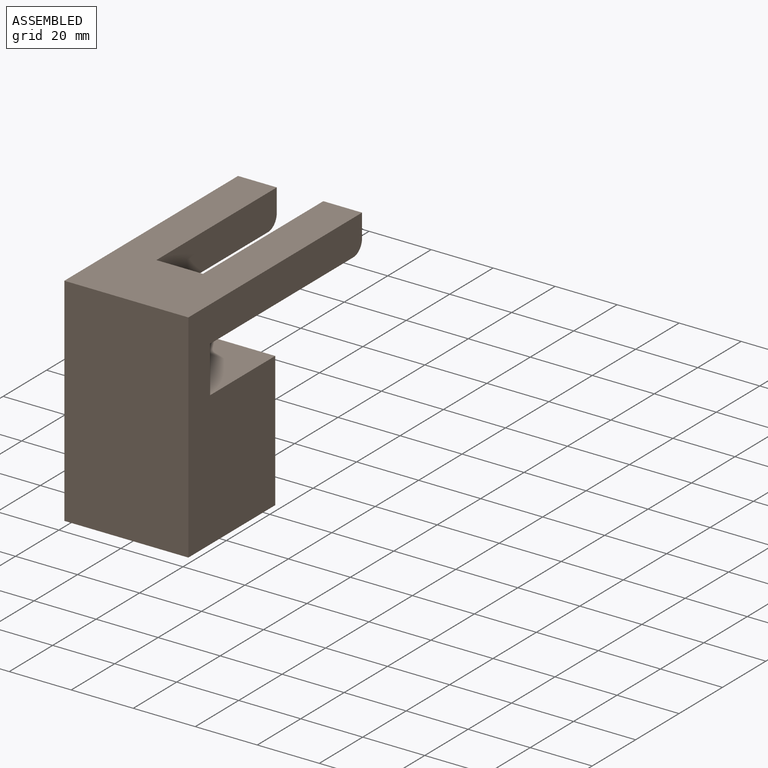
[diagram: assembled view]
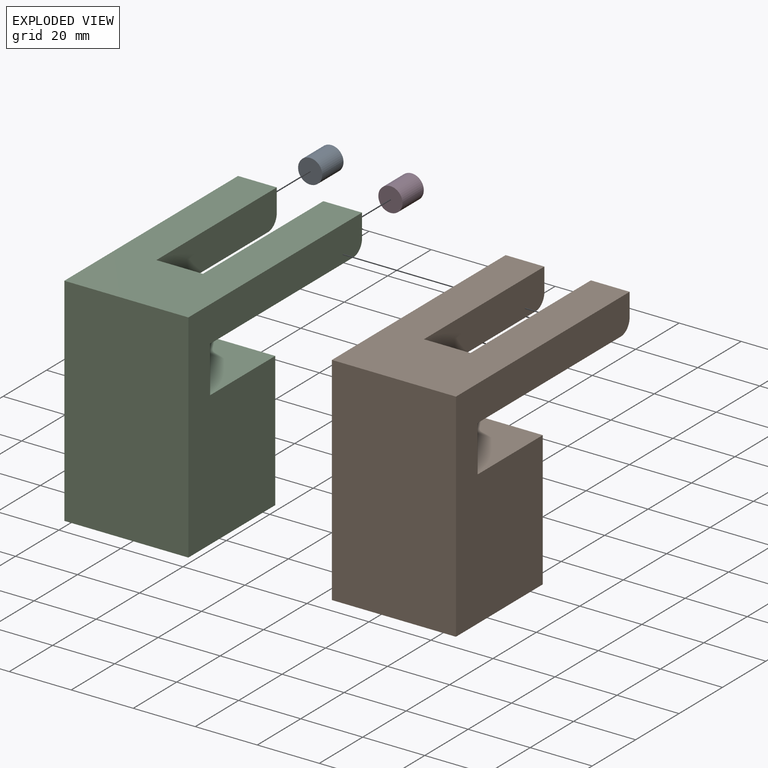
[diagram: exploded view]
GUIDED TOUR — MATED ASSEMBLY (Onshape document 04d674f3052794352896786d, AutoMate assembly 04d674f3052794352896786d_f9656a8b51aaeff354e7c917_f7d51a7bb72a983e36a028b1_default)

This assembly has 4 components, labeled P0..P3 below (a component is one placed occurrence of a part; the same part can appear more than once), held together by 2 mates. A mate is a constraint between two components; its type names the relative motion it leaves free:
  SLIDER — leaves translation along the listed axis free.
Axis/direction vectors are unit vectors and 'through' points are millimeter coordinates, both in the assembly's world frame.

MATES
  1. SLIDER "Slider 2": P3 <-> P2, axis (0.000, 1.000, 0.000) through (13.75, 62.51, 3.70) mm
  2. SLIDER "Slider 1": P0 <-> P2, axis (0.000, 1.000, 0.000) through (-13.75, 62.51, 3.70) mm

ASSEMBLY ORDER
  1. P2 — the base component [order heuristic]
  2. P1 — core [order heuristic]
  3. P3 [order verified]
  4. P0 [order verified]
Order-tag legend:
  [order verified] — this step's position reverses a verified removal order: the component was checked to insert without passing through the ones already placed.
  [order heuristic] — the first 2 components form the assembly's core: parts whose collision-free extraction could not be verified, listed in mate-graph order.

Of the 4 components, 0 carry the full construction recipe — the FeatureScript program that regenerates the part's solid from scratch; the rest are supplied as boundary geometry only.
Each toured component is shown spotlighted twice — in the assembled view, then in the exploded view, where a leader line traces a displaced component back to its assembled socket (saturated green if recipe-attached, orange if geometry-only; every other component desaturated gray) — followed by its recipe or geometry summary and the mates that hold it.
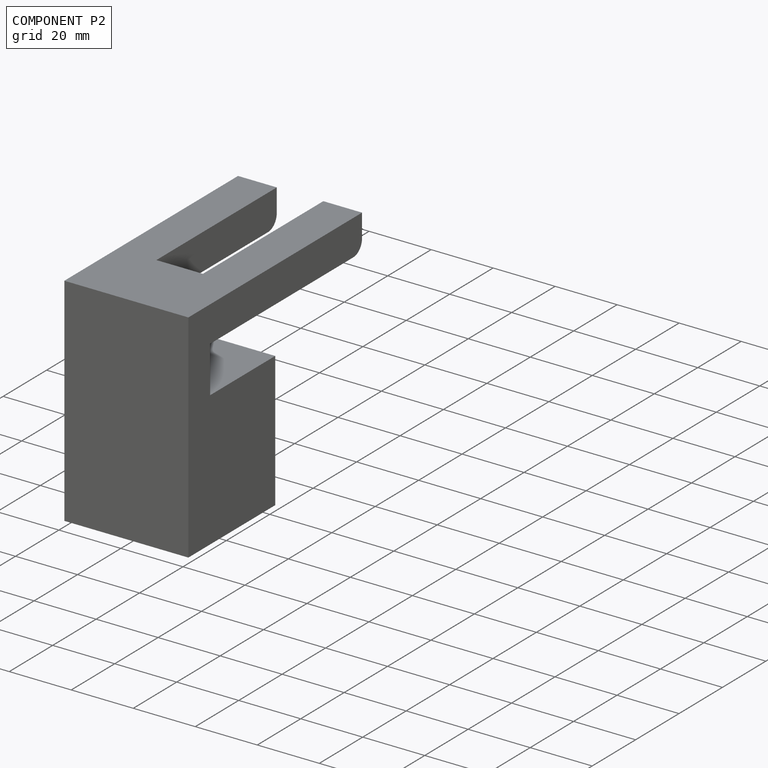
[diagram: component P2 — assembled]
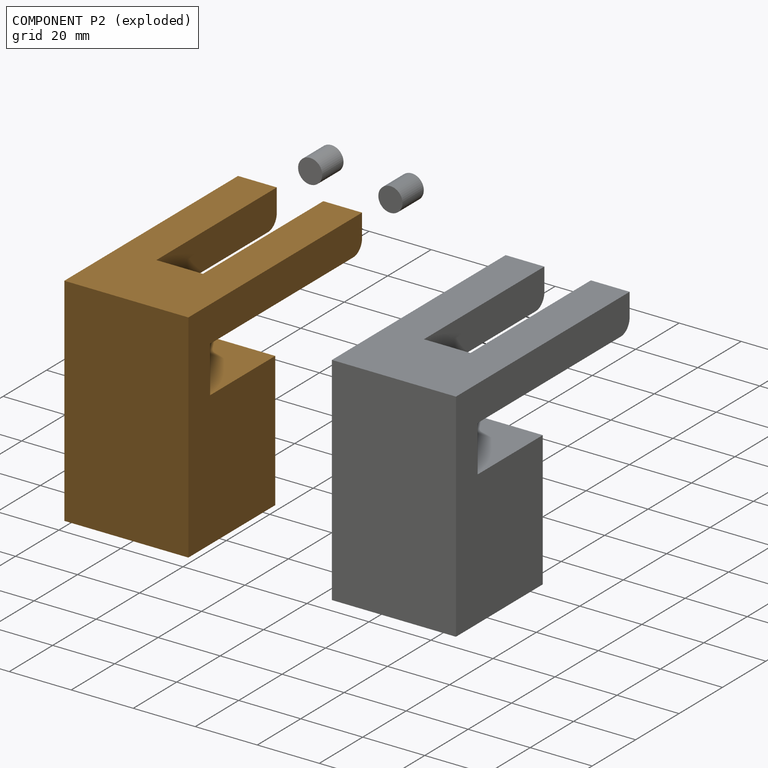
[diagram: component P2 — exploded]
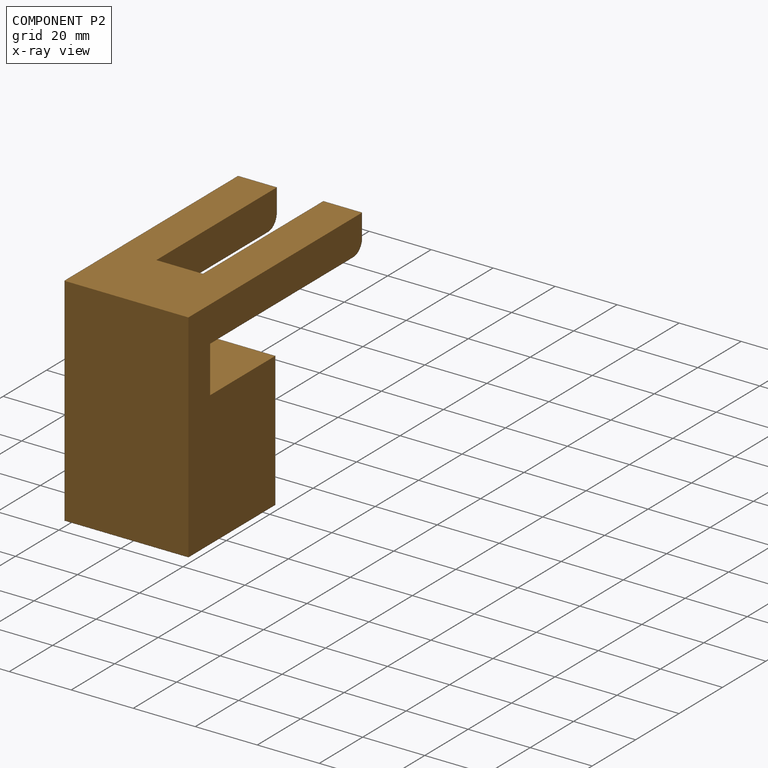
[diagram: component P2 — x-ray view]
COMPONENT P2 — geometry summary (no construction recipe available for this part):
  bounding box: 80.0 x 70.0 x 40.0 mm
  B-rep topology: 1 solid, 20 faces, 108 edges
  volume: 101699 mm^3 (45% of its bounding box)
  symmetry: mirror-symmetric across its x mid-plane
Held by: SLIDER mate "Slider 2" to P3; SLIDER mate "Slider 1" to P0.
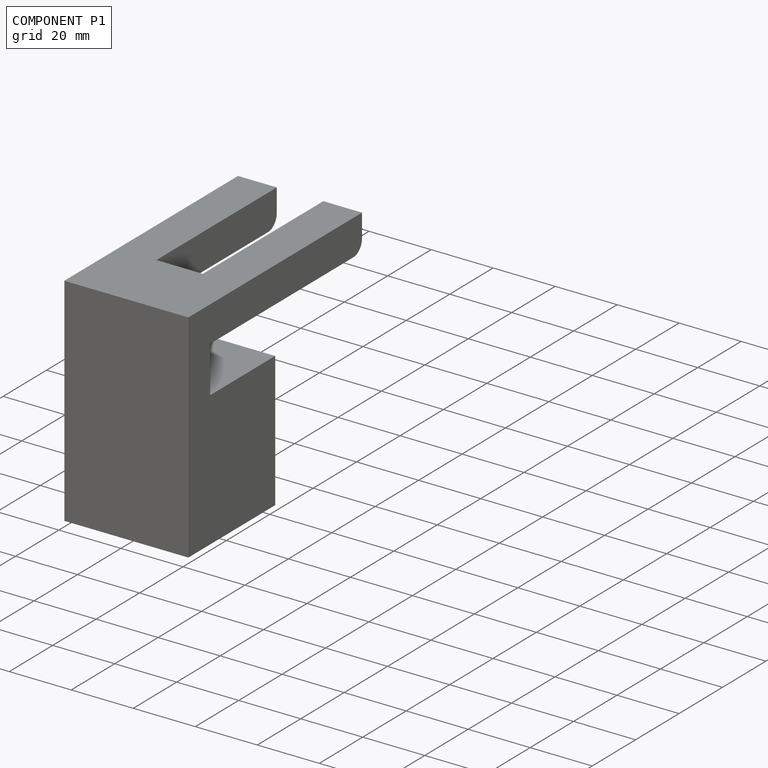
[diagram: component P1 — assembled]
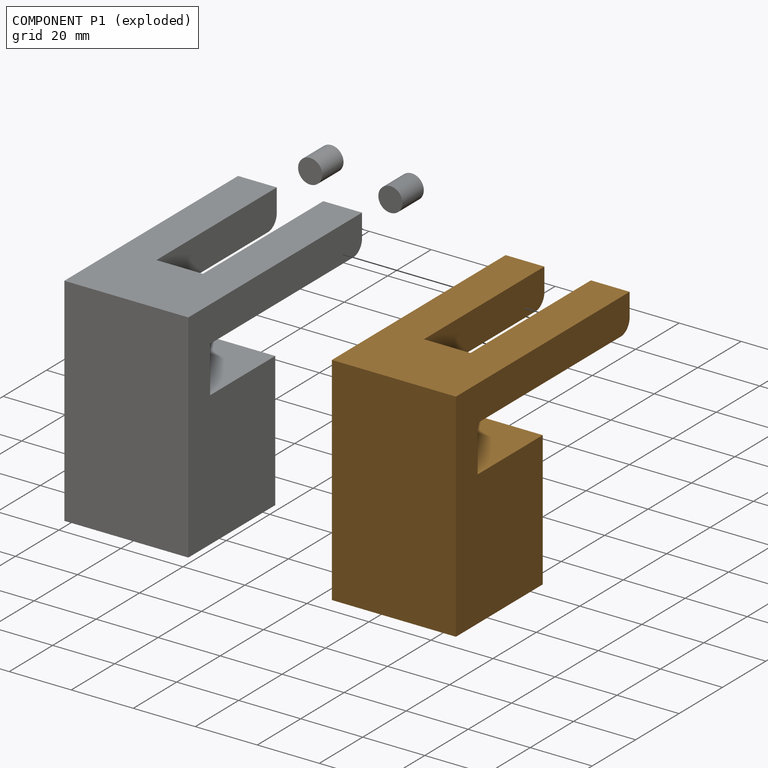
[diagram: component P1 — exploded]
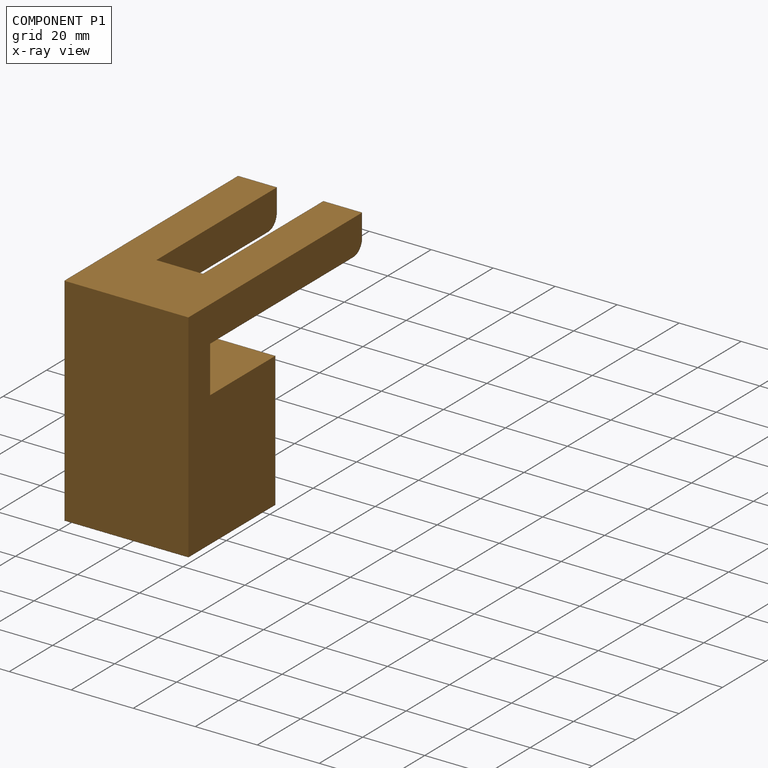
[diagram: component P1 — x-ray view]
COMPONENT P1 — geometry summary (no construction recipe available for this part):
  bounding box: 80.0 x 70.0 x 40.0 mm
  B-rep topology: 1 solid, 20 faces, 108 edges
  volume: 101699 mm^3 (45% of its bounding box)
  symmetry: mirror-symmetric across its x mid-plane
Held by: no mates (free).
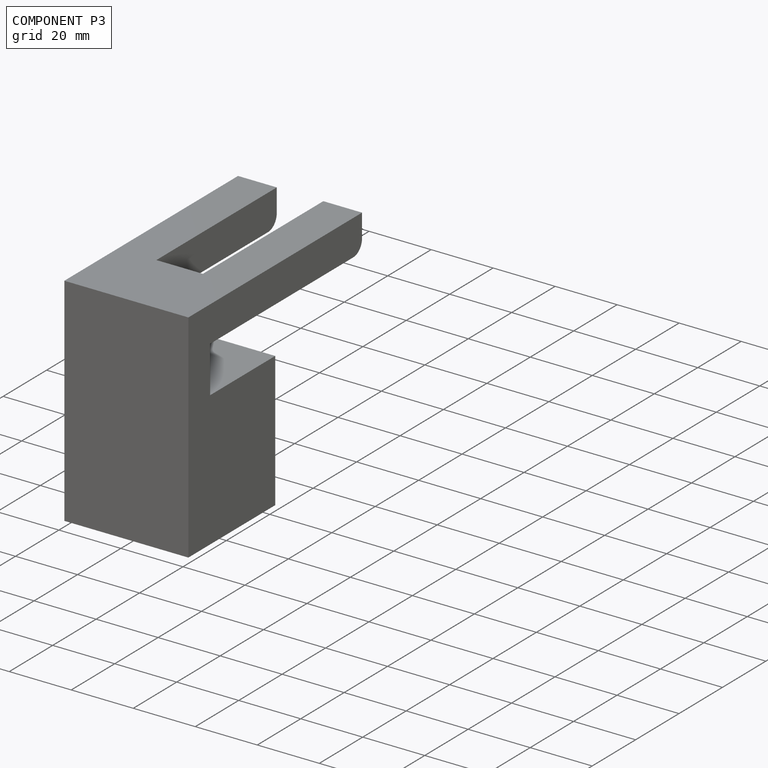
[diagram: component P3 — assembled]
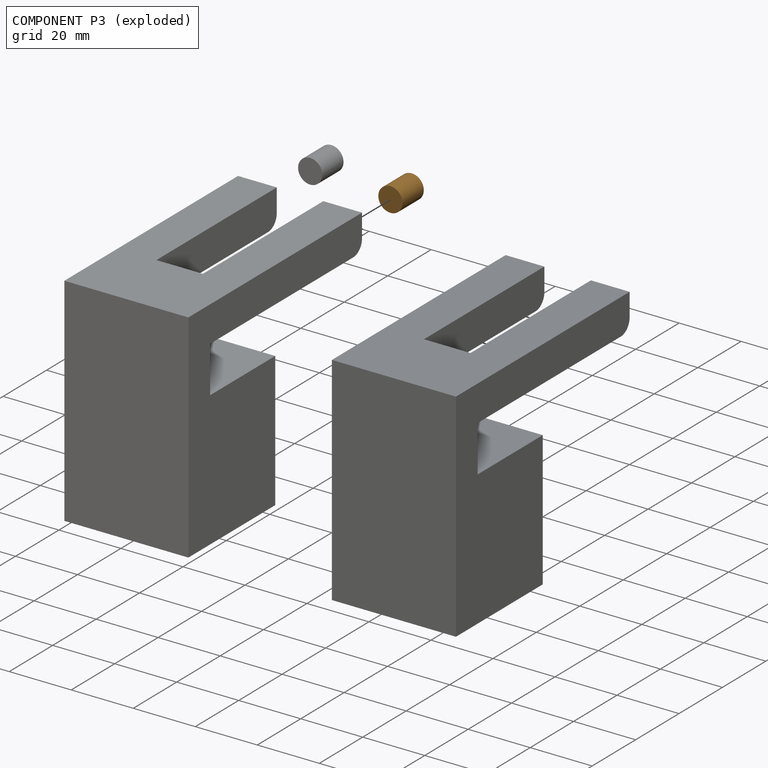
[diagram: component P3 — exploded]
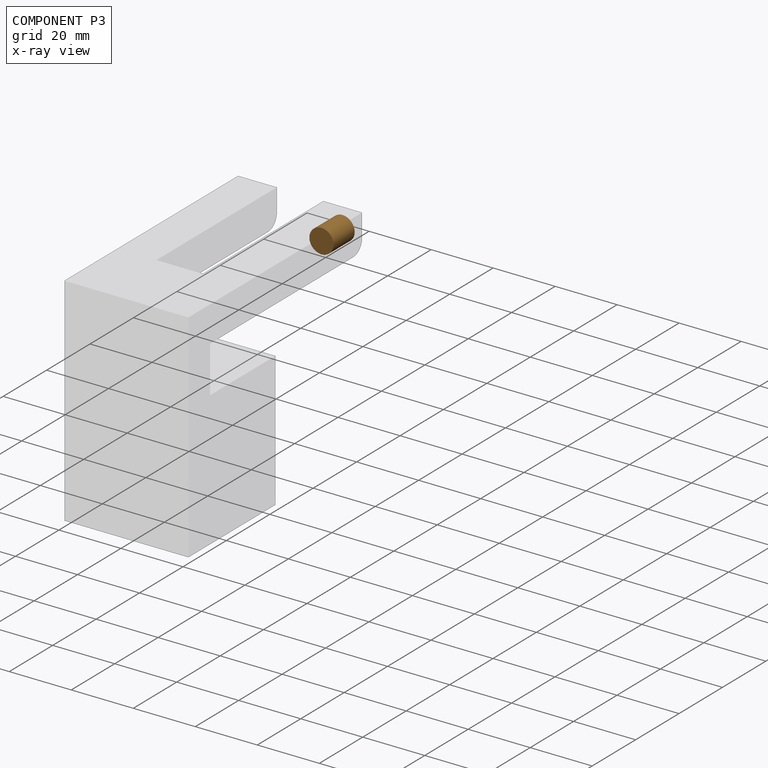
[diagram: component P3 — x-ray view]
COMPONENT P3 — geometry summary (no construction recipe available for this part):
  bounding box: 9.8 x 7.8 x 7.8 mm
  B-rep topology: 1 solid, 3 faces, 6 edges
  volume: 468 mm^3 (79% of its bounding box)
  symmetry: 2-fold rotationally symmetric about the x axis; revolution-symmetric about the y axis through its bounding-box center; 2-fold rotationally symmetric about the z axis; mirror-symmetric across its x mid-plane, y mid-plane, z mid-plane
Held by: SLIDER mate "Slider 2" to P2.
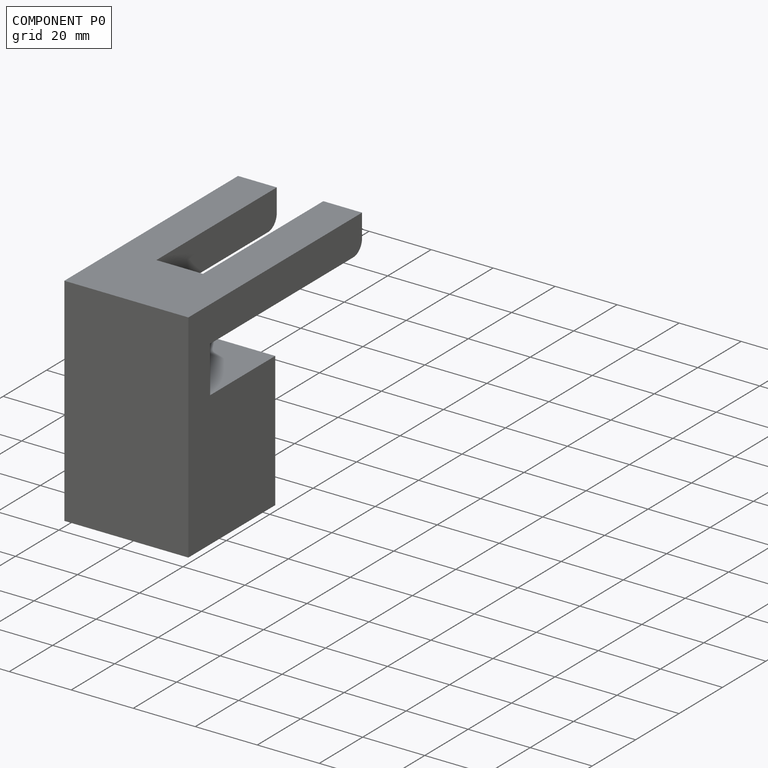
[diagram: component P0 — assembled]
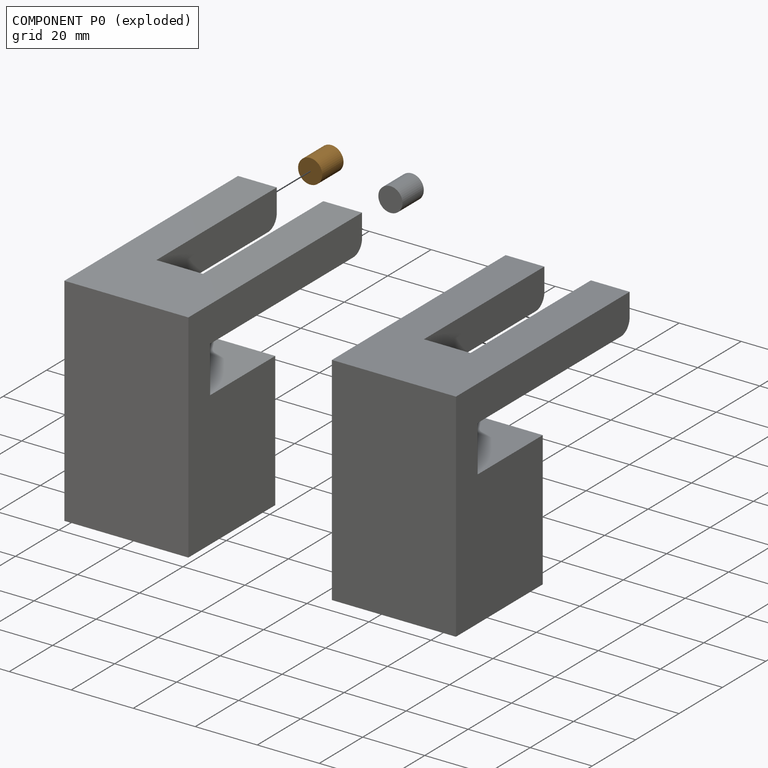
[diagram: component P0 — exploded]
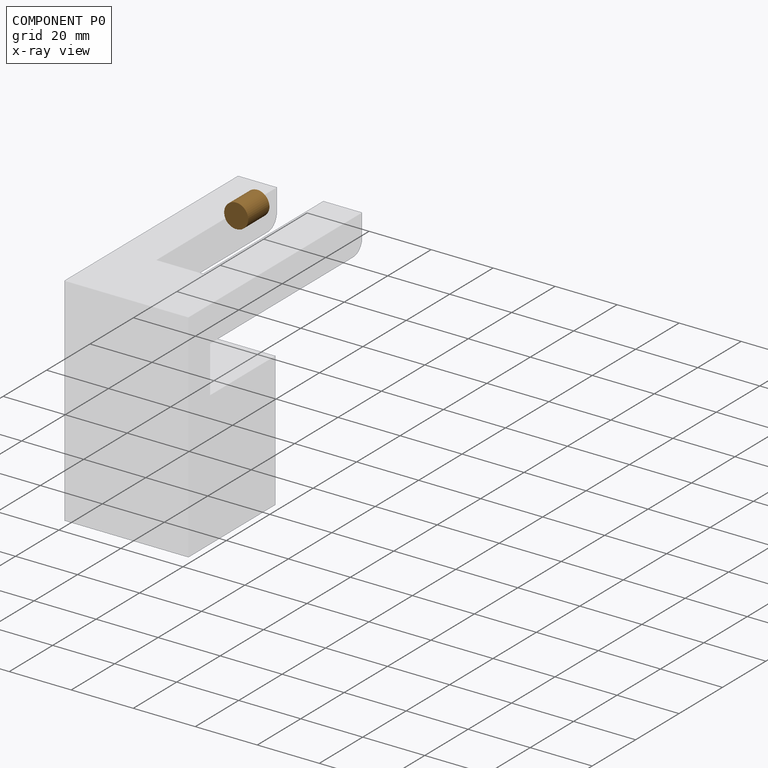
[diagram: component P0 — x-ray view]
COMPONENT P0 — geometry summary (no construction recipe available for this part):
  bounding box: 9.8 x 7.8 x 7.8 mm
  B-rep topology: 1 solid, 3 faces, 6 edges
  volume: 468 mm^3 (79% of its bounding box)
  symmetry: 2-fold rotationally symmetric about the x axis; revolution-symmetric about the y axis through its bounding-box center; 2-fold rotationally symmetric about the z axis; mirror-symmetric across its x mid-plane, y mid-plane, z mid-plane
Held by: SLIDER mate "Slider 1" to P2.
PROVENANCE & LICENSES
Assembly (occurrences, transforms, mates, per-part STEP geometry): AutoMate dataset, Zenodo record 7776208, CC0.
Construction recipes: CADFS (HuggingFace VladPyatov/CADFS, CC-BY-4.0, layered over the ABC dataset), FeatureScript reconstruction programs keyed by ABC model id.
Join: ABC meta listings map ABC model id -> Onshape documentId; within a shared document, parts are matched by geometric signature (bounding-box dims + volume at 0.1% relative tolerance, exact B-rep face/solid counts).
Verification: no recipe attachments in this assembly (4 components, all geometry-only).
Renders: orthographic iso camera (az 35 / el 25); the floor grid conveys scale (grid pitch printed in each image; no ruler). In the exploded view each component is displaced by its stored offset vector: the offsets alone carry the explosion direction (mate normal/axis signs are not orientation cues and do not encode it), and separation distances are assigned per mate-chain, not proportionally to assembly-order depth.
